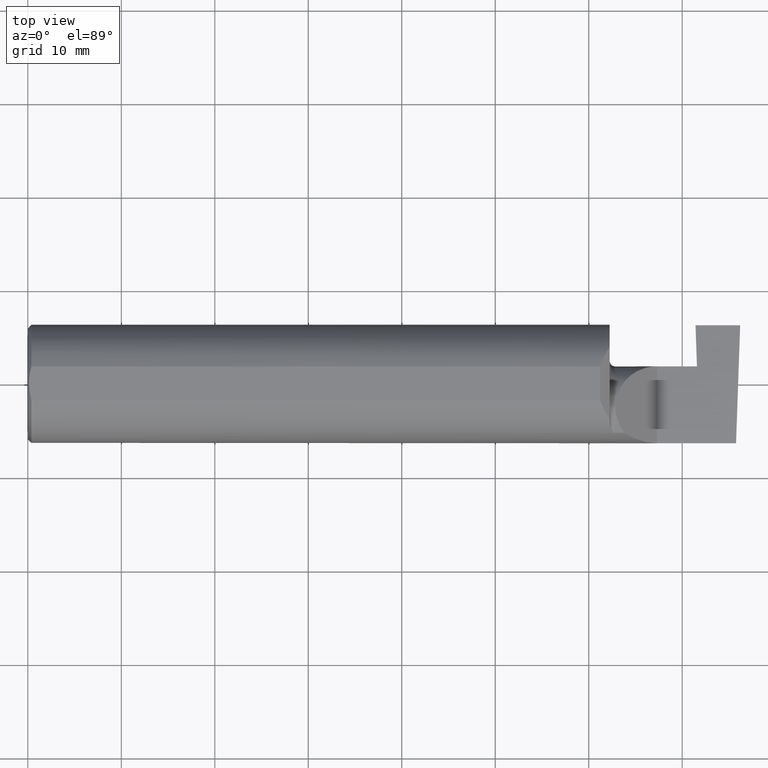
[diagram: clean part render]
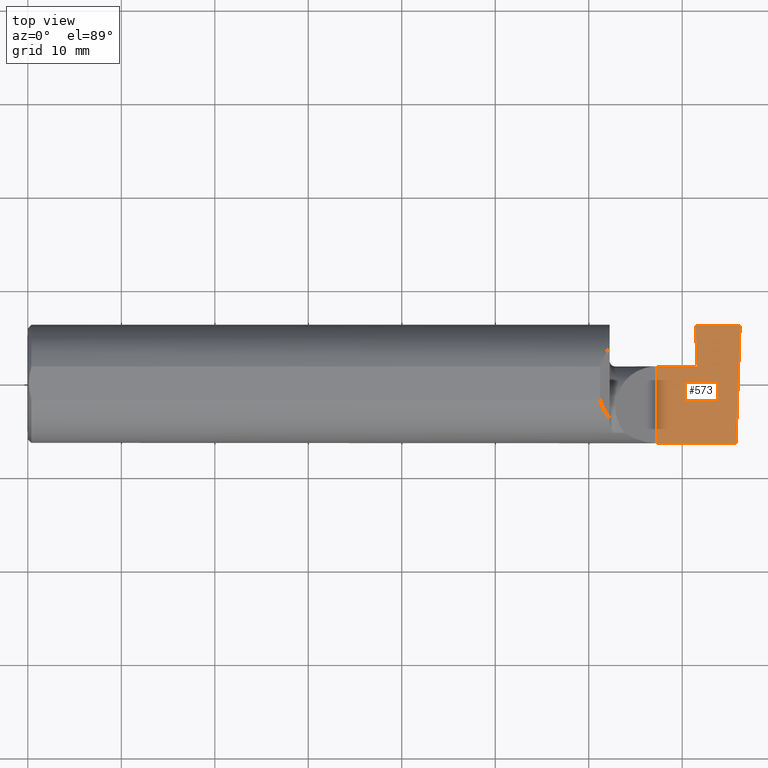
[diagram: same view with one face highlighted and labeled with its STEP entity id]
A machine part, top view. The second image highlights one B-rep face of the part: STEP entity #573.
In plain terms, the highlighted planar face has unit normal (-0, 0, -1).
Its self-contained STEP definition (entity closure, byte-faithful):
#49 = VERTEX_POINT ( 'NONE', #590 ) ;
#80 = EDGE_LOOP ( 'NONE', ( #151, #747, #360, #325, #309, #259, #467 ) ) ;
#83 = VERTEX_POINT ( 'NONE', #518 ) ;
#127 = DIRECTION ( 'NONE',  ( 0.03487823687994490163, -0.9993915692020551855, -4.266149715957147469E-18 ) ) ;
#135 = EDGE_CURVE ( 'NONE', #209, #276, #547, .T. ) ;
#139 = EDGE_CURVE ( 'NONE', #83, #205, #283, .T. ) ;
#151 = ORIENTED_EDGE ( 'NONE', *, *, #135, .F. ) ;
#160 = LINE ( 'NONE', #615, #725 ) ;
#168 = CARTESIAN_POINT ( 'NONE',  ( 2.982644377562602589, -0.2498499999999999610, 1.813681607540488003E-17 ) ) ;
#192 = DIRECTION ( 'NONE',  ( -1.000000000000000000, 2.404289197831222590E-16, 1.224646799147351482E-16 ) ) ;
#205 = VERTEX_POINT ( 'NONE', #783 ) ;
#209 = VERTEX_POINT ( 'NONE', #168 ) ;
#219 = VECTOR ( 'NONE', #596, 39.37007874015748143 ) ;
#220 = DIRECTION ( 'NONE',  ( -1.000000000000000000, -0.000000000000000000, -0.000000000000000000 ) ) ;
#247 = EDGE_CURVE ( 'NONE', #209, #49, #653, .T. ) ;
#259 = ORIENTED_EDGE ( 'NONE', *, *, #139, .F. ) ;
#274 = AXIS2_PLACEMENT_3D ( 'NONE', #307, #387, #369 ) ;
#276 = VERTEX_POINT ( 'NONE', #470 ) ;
#283 = LINE ( 'NONE', #290, #555 ) ;
#290 = CARTESIAN_POINT ( 'NONE',  ( 2.450000000000000178, 0.07414999999999997982, 6.735557395310432655E-17 ) ) ;
#291 = VERTEX_POINT ( 'NONE', #312 ) ;
#307 = CARTESIAN_POINT ( 'NONE',  ( 3.000000000000000444, -0.2500000000000000555, 0.000000000000000000 ) ) ;
#309 = ORIENTED_EDGE ( 'NONE', *, *, #583, .T. ) ;
#312 = CARTESIAN_POINT ( 'NONE',  ( 2.818037608447157005, 0.07414999999999993818, 1.114198301901933043E-17 ) ) ;
#325 = ORIENTED_EDGE ( 'NONE', *, *, #603, .T. ) ;
#326 = VECTOR ( 'NONE', #220, 39.37007874015748143 ) ;
#344 = VECTOR ( 'NONE', #127, 39.37007874015748854 ) ;
#345 = CARTESIAN_POINT ( 'NONE',  ( 2.982660284539054629, -0.2493944837933358694, 2.123502703737254632E-18 ) ) ;
#360 = ORIENTED_EDGE ( 'NONE', *, *, #630, .F. ) ;
#369 = DIRECTION ( 'NONE',  ( -1.000000000000000000, 0.000000000000000000, 1.224646799147351482E-16 ) ) ;
#387 = DIRECTION ( 'NONE',  ( -1.224646799147351482E-16, 0.000000000000000000, -1.000000000000000000 ) ) ;
#445 = CARTESIAN_POINT ( 'NONE',  ( 2.812000000000000277, 0.2471500000000000086, -3.306546357697639493E-19 ) ) ;
#447 = PLANE ( 'NONE',  #274 ) ;
#467 = ORIENTED_EDGE ( 'NONE', *, *, #812, .F. ) ;
#470 = CARTESIAN_POINT ( 'NONE',  ( 2.650000000000000355, -0.2498499999999999610, 4.286263797015727350E-17 ) ) ;
#508 = LINE ( 'NONE', #759, #344 ) ;
#518 = CARTESIAN_POINT ( 'NONE',  ( 2.650000000000000355, 0.07414999999999997982, 4.286263797015727350E-17 ) ) ;
#547 = LINE ( 'NONE', #671, #326 ) ;
#555 = VECTOR ( 'NONE', #794, 39.37007874015748143 ) ;
#558 = VERTEX_POINT ( 'NONE', #445 ) ;
#559 = CARTESIAN_POINT ( 'NONE',  ( 2.800000000000000266, 0.2471500000000000086, -3.306546357697639493E-19 ) ) ;
#565 = CARTESIAN_POINT ( 'NONE',  ( 3.000000000000000444, 0.07414999999999984104, -9.544289035534854420E-33 ) ) ;
#573 = ADVANCED_FACE ( 'NONE', ( #820 ), #447, .F. ) ;
#583 = EDGE_CURVE ( 'NONE', #291, #205, #696, .T. ) ;
#590 = CARTESIAN_POINT ( 'NONE',  ( 3.000000000000000444, 0.2471500000000000086, -1.269882465804872255E-16 ) ) ;
#595 = VECTOR ( 'NONE', #811, 39.37007874015748143 ) ;
#596 = DIRECTION ( 'NONE',  ( 0.03489949670249940794, 0.9993908270190957621, -4.452728370532699971E-18 ) ) ;
#603 = EDGE_CURVE ( 'NONE', #558, #291, #508, .T. ) ;
#615 = CARTESIAN_POINT ( 'NONE',  ( 2.650000000000000355, -0.2500000000000000555, 4.286263797015727350E-17 ) ) ;
#620 = LINE ( 'NONE', #559, #595 ) ;
#630 = EDGE_CURVE ( 'NONE', #558, #49, #620, .T. ) ;
#635 = VECTOR ( 'NONE', #192, 39.37007874015748143 ) ;
#653 = LINE ( 'NONE', #345, #219 ) ;
#660 = DIRECTION ( 'NONE',  ( -0.000000000000000000, 1.000000000000000000, -0.000000000000000000 ) ) ;
#671 = CARTESIAN_POINT ( 'NONE',  ( 4.499279347985559139E-32, -0.2498499999999999610, 3.673940397442053459E-16 ) ) ;
#696 = LINE ( 'NONE', #565, #635 ) ;
#725 = VECTOR ( 'NONE', #660, 39.37007874015748143 ) ;
#747 = ORIENTED_EDGE ( 'NONE', *, *, #247, .T. ) ;
#759 = CARTESIAN_POINT ( 'NONE',  ( 2.829557865832625918, -0.2559483402832380405, 2.087314140479184815E-17 ) ) ;
#783 = CARTESIAN_POINT ( 'NONE',  ( 2.812000000000000277, 0.07414999999999999369, 6.735556484410550145E-17 ) ) ;
#794 = DIRECTION ( 'NONE',  ( 1.000000000000000000, 0.000000000000000000, 0.000000000000000000 ) ) ;
#811 = DIRECTION ( 'NONE',  ( 1.000000000000000000, -0.000000000000000000, -0.000000000000000000 ) ) ;
#812 = EDGE_CURVE ( 'NONE', #276, #83, #160, .T. ) ;
#820 = FACE_OUTER_BOUND ( 'NONE', #80, .T. ) ;